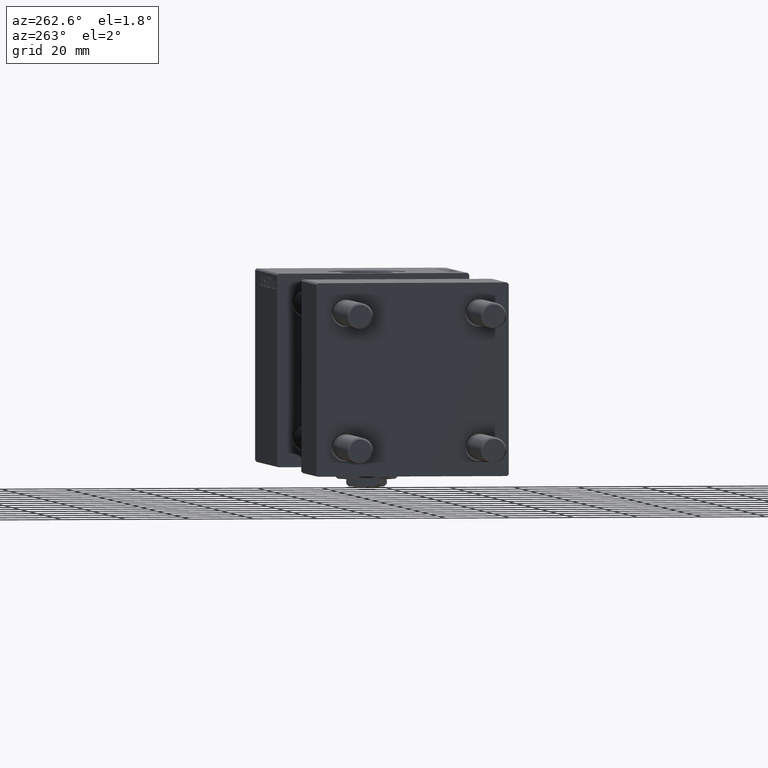
[diagram: clean part render]
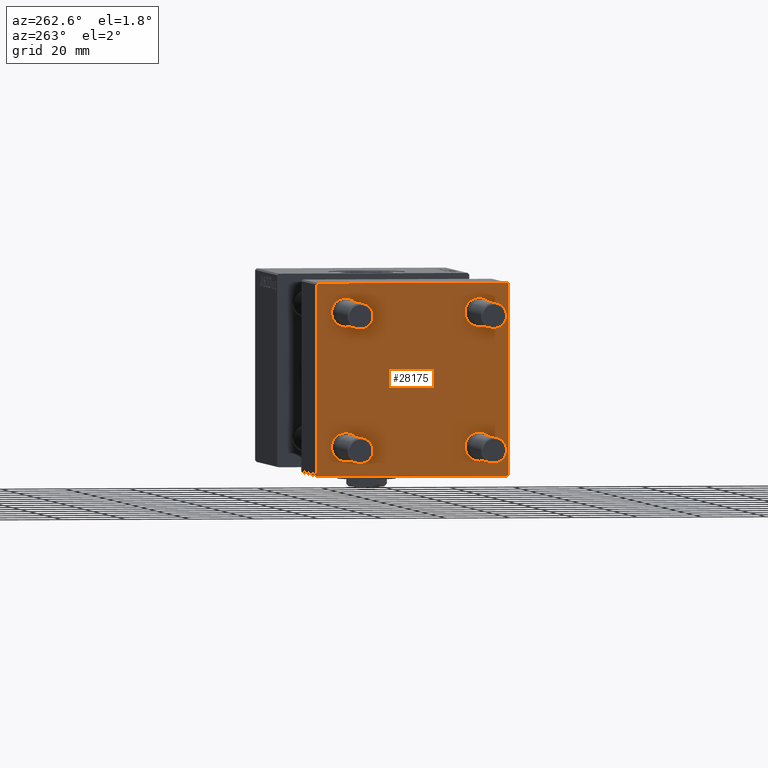
[diagram: same view with one face highlighted and labeled with its STEP entity id]
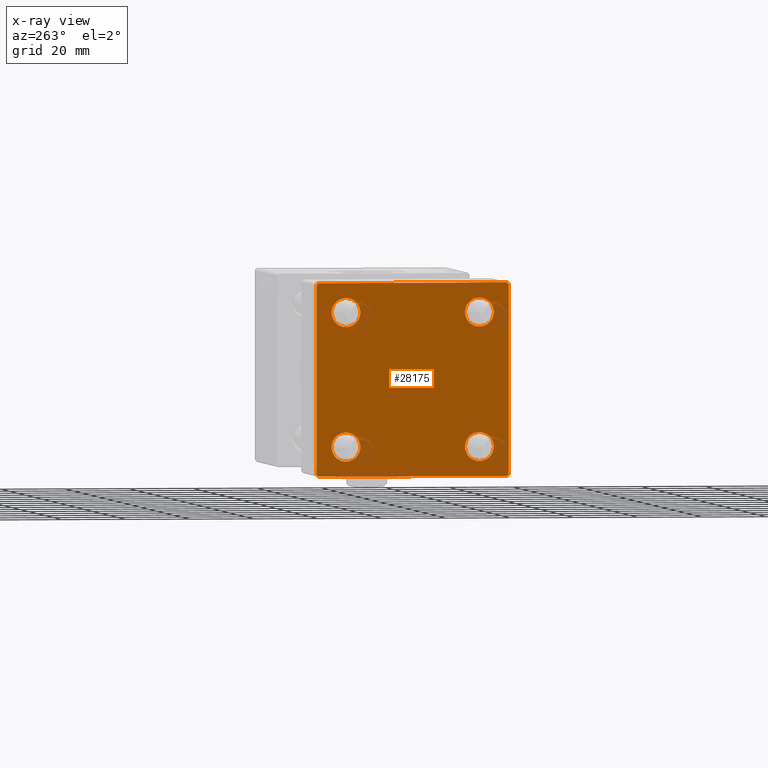
[diagram: x-ray of the same camera — body ghosted, the highlighted face saturated]
A machine part, auxiliary view. The second image highlights one B-rep face of the part: STEP entity #28175.
The next image is the same camera in x-ray: the body ghosted, the highlighted face saturated — about 4% of this face is hidden behind the body in this view.
In plain terms, the highlighted planar face has unit normal (-1, 0, 0).
Its self-contained STEP definition (entity closure, byte-faithful):
#339 = EDGE_CURVE ( 'NONE', #25520, #1330, #33143, .T. ) ;
#593 = CARTESIAN_POINT ( 'NONE',  ( 0.000000000000000000, -20.84999999999999076, 16.34999999999998721 ) ) ;
#632 = EDGE_LOOP ( 'NONE', ( #24846, #30590 ) ) ;
#1330 = VERTEX_POINT ( 'NONE', #6938 ) ;
#1371 = CARTESIAN_POINT ( 'NONE',  ( 0.000000000000000000, -20.84999999999999076, 20.85000000000000497 ) ) ;
#1586 = EDGE_CURVE ( 'NONE', #17412, #50628, #50571, .T. ) ;
#1590 = CARTESIAN_POINT ( 'NONE',  ( 0.000000000000000000, 29.49999999999997868, -30.00000000000000000 ) ) ;
#2063 = CARTESIAN_POINT ( 'NONE',  ( 0.000000000000000000, -29.75000000000001066, -29.75000000000001066 ) ) ;
#2086 = DIRECTION ( 'NONE',  ( 1.000000000000000000, -0.000000000000000000, 0.000000000000000000 ) ) ;
#3105 = CIRCLE ( 'NONE', #31469, 4.500000000000017764 ) ;
#3533 = ORIENTED_EDGE ( 'NONE', *, *, #1586, .T. ) ;
#3575 = VERTEX_POINT ( 'NONE', #35326 ) ;
#4979 = CARTESIAN_POINT ( 'NONE',  ( 0.000000000000000000, 29.99999999999999289, 30.00000000000000000 ) ) ;
#5490 = DIRECTION ( 'NONE',  ( 0.000000000000000000, 0.000000000000000000, 1.000000000000000000 ) ) ;
#5804 = VECTOR ( 'NONE', #14426, 1000.000000000000000 ) ;
#5961 = CARTESIAN_POINT ( 'NONE',  ( 0.000000000000000000, -29.49999999999998579, 29.99999999999999289 ) ) ;
#6426 = DIRECTION ( 'NONE',  ( -0.000000000000000000, 0.7071067811865474617, 0.7071067811865474617 ) ) ;
#6835 = CARTESIAN_POINT ( 'NONE',  ( 0.000000000000000000, 29.74999999999999645, 29.74999999999999645 ) ) ;
#6938 = CARTESIAN_POINT ( 'NONE',  ( 0.000000000000000000, -30.00000000000000000, -29.50000000000001776 ) ) ;
#6995 = DIRECTION ( 'NONE',  ( 1.000000000000000000, -0.000000000000000000, 0.000000000000000000 ) ) ;
#7503 = FACE_BOUND ( 'NONE', #14580, .T. ) ;
#8030 = DIRECTION ( 'NONE',  ( 1.000000000000000000, -0.000000000000000000, 0.000000000000000000 ) ) ;
#8975 = AXIS2_PLACEMENT_3D ( 'NONE', #46508, #14676, #50426 ) ;
#10338 = LINE ( 'NONE', #42160, #36509 ) ;
#11146 = DIRECTION ( 'NONE',  ( -0.000000000000000000, 0.000000000000000000, 1.000000000000000000 ) ) ;
#11670 = PLANE ( 'NONE',  #27483 ) ;
#12492 = CIRCLE ( 'NONE', #19158, 4.500000000000017764 ) ;
#13288 = EDGE_CURVE ( 'NONE', #33948, #25520, #14986, .T. ) ;
#13801 = VERTEX_POINT ( 'NONE', #26881 ) ;
#14328 = CIRCLE ( 'NONE', #19343, 4.500000000000017764 ) ;
#14426 = DIRECTION ( 'NONE',  ( 0.000000000000000000, 0.000000000000000000, -1.000000000000000000 ) ) ;
#14430 = ORIENTED_EDGE ( 'NONE', *, *, #38131, .T. ) ;
#14580 = EDGE_LOOP ( 'NONE', ( #14430, #22793 ) ) ;
#14676 = DIRECTION ( 'NONE',  ( 1.000000000000000000, -0.000000000000000000, 0.000000000000000000 ) ) ;
#14789 = DIRECTION ( 'NONE',  ( -1.000000000000000000, 0.000000000000000000, -0.000000000000000000 ) ) ;
#14986 = LINE ( 'NONE', #30920, #26234 ) ;
#15273 = VERTEX_POINT ( 'NONE', #40247 ) ;
#16480 = EDGE_CURVE ( 'NONE', #3575, #49511, #41221, .T. ) ;
#16829 = ORIENTED_EDGE ( 'NONE', *, *, #339, .T. ) ;
#17412 = VERTEX_POINT ( 'NONE', #24834 ) ;
#17575 = DIRECTION ( 'NONE',  ( 1.000000000000000000, -0.000000000000000000, 0.000000000000000000 ) ) ;
#18559 = ORIENTED_EDGE ( 'NONE', *, *, #44763, .T. ) ;
#18876 = EDGE_CURVE ( 'NONE', #13801, #25882, #3105, .T. ) ;
#19033 = LINE ( 'NONE', #34673, #20093 ) ;
#19158 = AXIS2_PLACEMENT_3D ( 'NONE', #33308, #44285, #37202 ) ;
#19343 = AXIS2_PLACEMENT_3D ( 'NONE', #47700, #8030, #47171 ) ;
#19716 = VECTOR ( 'NONE', #26623, 1000.000000000000000 ) ;
#20093 = VECTOR ( 'NONE', #23218, 999.9999999999998863 ) ;
#20875 = ORIENTED_EDGE ( 'NONE', *, *, #13288, .T. ) ;
#21494 = CARTESIAN_POINT ( 'NONE',  ( 0.000000000000000000, -20.84999999999999076, -20.85000000000000497 ) ) ;
#22150 = ORIENTED_EDGE ( 'NONE', *, *, #32569, .T. ) ;
#22184 = VECTOR ( 'NONE', #33402, 1000.000000000000114 ) ;
#22261 = LINE ( 'NONE', #42611, #5804 ) ;
#22736 = CARTESIAN_POINT ( 'NONE',  ( 0.000000000000000000, -30.00000000000000000, 29.49999999999999289 ) ) ;
#22748 = ORIENTED_EDGE ( 'NONE', *, *, #42130, .F. ) ;
#22793 = ORIENTED_EDGE ( 'NONE', *, *, #35812, .T. ) ;
#23191 = ORIENTED_EDGE ( 'NONE', *, *, #50177, .T. ) ;
#23218 = DIRECTION ( 'NONE',  ( -0.000000000000000000, -0.7071067811865574537, -0.7071067811865376918 ) ) ;
#24320 = CARTESIAN_POINT ( 'NONE',  ( 0.000000000000000000, -29.50000000000000000, -30.00000000000000711 ) ) ;
#24834 = CARTESIAN_POINT ( 'NONE',  ( 0.000000000000000000, 20.84999999999999787, 16.34999999999998366 ) ) ;
#24846 = ORIENTED_EDGE ( 'NONE', *, *, #18876, .T. ) ;
#25520 = VERTEX_POINT ( 'NONE', #24320 ) ;
#25708 = VECTOR ( 'NONE', #45441, 1000.000000000000114 ) ;
#25882 = VERTEX_POINT ( 'NONE', #593 ) ;
#25929 = DIRECTION ( 'NONE',  ( 0.000000000000000000, 0.000000000000000000, 1.000000000000000000 ) ) ;
#26017 = VERTEX_POINT ( 'NONE', #22736 ) ;
#26234 = VECTOR ( 'NONE', #35594, 1000.000000000000000 ) ;
#26623 = DIRECTION ( 'NONE',  ( 0.000000000000000000, 0.000000000000000000, -1.000000000000000000 ) ) ;
#26881 = CARTESIAN_POINT ( 'NONE',  ( 0.000000000000000000, -20.84999999999999076, 25.35000000000002274 ) ) ;
#27043 = CARTESIAN_POINT ( 'NONE',  ( 0.000000000000000000, -20.84999999999999076, -16.34999999999998721 ) ) ;
#27098 = DIRECTION ( 'NONE',  ( 0.000000000000000000, 0.000000000000000000, 1.000000000000000000 ) ) ;
#27142 = CARTESIAN_POINT ( 'NONE',  ( 0.000000000000000000, -30.00000000000000000, 29.99999999999999289 ) ) ;
#27483 = AXIS2_PLACEMENT_3D ( 'NONE', #27597, #14789, #11146 ) ;
#27597 = CARTESIAN_POINT ( 'NONE',  ( 0.000000000000000000, 0.000000000000000000, 0.000000000000000000 ) ) ;
#27860 = EDGE_CURVE ( 'NONE', #25882, #13801, #37420, .T. ) ;
#28099 = AXIS2_PLACEMENT_3D ( 'NONE', #32095, #31596, #36520 ) ;
#28175 = ADVANCED_FACE ( 'NONE', ( #31242, #7503, #47146, #43235, #50535 ), #11670, .T. ) ;
#28971 = EDGE_CURVE ( 'NONE', #39806, #15273, #12492, .T. ) ;
#29687 = CARTESIAN_POINT ( 'NONE',  ( 0.000000000000000000, 29.99999999999999289, 29.50000000000000000 ) ) ;
#30590 = ORIENTED_EDGE ( 'NONE', *, *, #27860, .T. ) ;
#30920 = CARTESIAN_POINT ( 'NONE',  ( 0.000000000000000000, 29.99999999999999289, -30.00000000000000000 ) ) ;
#31242 = FACE_BOUND ( 'NONE', #632, .T. ) ;
#31469 = AXIS2_PLACEMENT_3D ( 'NONE', #42735, #6995, #27098 ) ;
#31596 = DIRECTION ( 'NONE',  ( 1.000000000000000000, -0.000000000000000000, 0.000000000000000000 ) ) ;
#31661 = EDGE_LOOP ( 'NONE', ( #23191, #22150, #20875, #16829, #22748, #46831, #41198, #45835 ) ) ;
#32095 = CARTESIAN_POINT ( 'NONE',  ( 0.000000000000000000, 20.84999999999999787, 20.85000000000000142 ) ) ;
#32400 = ORIENTED_EDGE ( 'NONE', *, *, #28971, .T. ) ;
#32569 = EDGE_CURVE ( 'NONE', #49346, #33948, #19033, .T. ) ;
#33143 = LINE ( 'NONE', #2063, #22184 ) ;
#33308 = CARTESIAN_POINT ( 'NONE',  ( 0.000000000000000000, 20.84999999999999787, -20.85000000000000142 ) ) ;
#33402 = DIRECTION ( 'NONE',  ( 0.000000000000000000, -0.7071067811865474617, 0.7071067811865474617 ) ) ;
#33494 = CARTESIAN_POINT ( 'NONE',  ( 0.000000000000000000, 29.99999999999999289, -29.50000000000000000 ) ) ;
#33948 = VERTEX_POINT ( 'NONE', #1590 ) ;
#34321 = VERTEX_POINT ( 'NONE', #45593 ) ;
#34673 = CARTESIAN_POINT ( 'NONE',  ( 0.000000000000000000, 29.74999999999957723, -29.75000000000040501 ) ) ;
#34942 = AXIS2_PLACEMENT_3D ( 'NONE', #50098, #2086, #5490 ) ;
#35326 = CARTESIAN_POINT ( 'NONE',  ( 0.000000000000000000, 29.49999999999999289, 30.00000000000000000 ) ) ;
#35594 = DIRECTION ( 'NONE',  ( 0.000000000000000000, -1.000000000000000000, -1.156482317317871725E-16 ) ) ;
#35660 = EDGE_LOOP ( 'NONE', ( #40020, #3533 ) ) ;
#35812 = EDGE_CURVE ( 'NONE', #34321, #38690, #37671, .T. ) ;
#36277 = CARTESIAN_POINT ( 'NONE',  ( 0.000000000000000000, 20.84999999999999787, -16.34999999999998366 ) ) ;
#36509 = VECTOR ( 'NONE', #6426, 1000.000000000000114 ) ;
#36520 = DIRECTION ( 'NONE',  ( 0.000000000000000000, 0.000000000000000000, 1.000000000000000000 ) ) ;
#36782 = CARTESIAN_POINT ( 'NONE',  ( 0.000000000000000000, 20.84999999999999787, 25.35000000000001918 ) ) ;
#37202 = DIRECTION ( 'NONE',  ( 0.000000000000000000, 0.000000000000000000, 1.000000000000000000 ) ) ;
#37420 = CIRCLE ( 'NONE', #42425, 4.500000000000017764 ) ;
#37671 = CIRCLE ( 'NONE', #43435, 4.500000000000017764 ) ;
#38131 = EDGE_CURVE ( 'NONE', #38690, #34321, #14328, .T. ) ;
#38690 = VERTEX_POINT ( 'NONE', #27043 ) ;
#39806 = VERTEX_POINT ( 'NONE', #36277 ) ;
#40020 = ORIENTED_EDGE ( 'NONE', *, *, #48362, .T. ) ;
#40247 = CARTESIAN_POINT ( 'NONE',  ( 0.000000000000000000, 20.84999999999999787, -25.35000000000001918 ) ) ;
#41198 = ORIENTED_EDGE ( 'NONE', *, *, #16480, .F. ) ;
#41221 = LINE ( 'NONE', #4979, #43841 ) ;
#41474 = DIRECTION ( 'NONE',  ( 0.000000000000000000, -1.000000000000000000, -1.156482317317871725E-16 ) ) ;
#42130 = EDGE_CURVE ( 'NONE', #26017, #1330, #46951, .T. ) ;
#42160 = CARTESIAN_POINT ( 'NONE',  ( -0.000000000000000000, -29.74999999999999645, 29.74999999999999645 ) ) ;
#42425 = AXIS2_PLACEMENT_3D ( 'NONE', #1371, #45444, #45204 ) ;
#42611 = CARTESIAN_POINT ( 'NONE',  ( 0.000000000000000000, 29.99999999999999289, 30.00000000000000000 ) ) ;
#42735 = CARTESIAN_POINT ( 'NONE',  ( 0.000000000000000000, -20.84999999999999076, 20.85000000000000497 ) ) ;
#43235 = FACE_BOUND ( 'NONE', #35660, .T. ) ;
#43435 = AXIS2_PLACEMENT_3D ( 'NONE', #21494, #17575, #25929 ) ;
#43589 = EDGE_LOOP ( 'NONE', ( #32400, #18559 ) ) ;
#43841 = VECTOR ( 'NONE', #41474, 1000.000000000000000 ) ;
#43958 = CIRCLE ( 'NONE', #8975, 4.500000000000017764 ) ;
#44285 = DIRECTION ( 'NONE',  ( 1.000000000000000000, -0.000000000000000000, 0.000000000000000000 ) ) ;
#44763 = EDGE_CURVE ( 'NONE', #15273, #39806, #43958, .T. ) ;
#45204 = DIRECTION ( 'NONE',  ( 0.000000000000000000, 0.000000000000000000, 1.000000000000000000 ) ) ;
#45441 = DIRECTION ( 'NONE',  ( 0.000000000000000000, 0.7071067811865474617, -0.7071067811865474617 ) ) ;
#45444 = DIRECTION ( 'NONE',  ( 1.000000000000000000, -0.000000000000000000, 0.000000000000000000 ) ) ;
#45593 = CARTESIAN_POINT ( 'NONE',  ( 0.000000000000000000, -20.84999999999999076, -25.35000000000002274 ) ) ;
#45835 = ORIENTED_EDGE ( 'NONE', *, *, #46822, .T. ) ;
#46208 = EDGE_CURVE ( 'NONE', #26017, #49511, #10338, .T. ) ;
#46508 = CARTESIAN_POINT ( 'NONE',  ( 0.000000000000000000, 20.84999999999999787, -20.85000000000000142 ) ) ;
#46822 = EDGE_CURVE ( 'NONE', #3575, #47515, #50143, .T. ) ;
#46831 = ORIENTED_EDGE ( 'NONE', *, *, #46208, .T. ) ;
#46951 = LINE ( 'NONE', #27142, #19716 ) ;
#47146 = FACE_BOUND ( 'NONE', #43589, .T. ) ;
#47171 = DIRECTION ( 'NONE',  ( 0.000000000000000000, 0.000000000000000000, 1.000000000000000000 ) ) ;
#47515 = VERTEX_POINT ( 'NONE', #29687 ) ;
#47700 = CARTESIAN_POINT ( 'NONE',  ( 0.000000000000000000, -20.84999999999999076, -20.85000000000000497 ) ) ;
#48362 = EDGE_CURVE ( 'NONE', #50628, #17412, #49132, .T. ) ;
#49132 = CIRCLE ( 'NONE', #34942, 4.500000000000017764 ) ;
#49346 = VERTEX_POINT ( 'NONE', #33494 ) ;
#49511 = VERTEX_POINT ( 'NONE', #5961 ) ;
#50098 = CARTESIAN_POINT ( 'NONE',  ( 0.000000000000000000, 20.84999999999999787, 20.85000000000000142 ) ) ;
#50143 = LINE ( 'NONE', #6835, #25708 ) ;
#50177 = EDGE_CURVE ( 'NONE', #47515, #49346, #22261, .T. ) ;
#50426 = DIRECTION ( 'NONE',  ( 0.000000000000000000, 0.000000000000000000, 1.000000000000000000 ) ) ;
#50535 = FACE_OUTER_BOUND ( 'NONE', #31661, .T. ) ;
#50571 = CIRCLE ( 'NONE', #28099, 4.500000000000017764 ) ;
#50628 = VERTEX_POINT ( 'NONE', #36782 ) ;